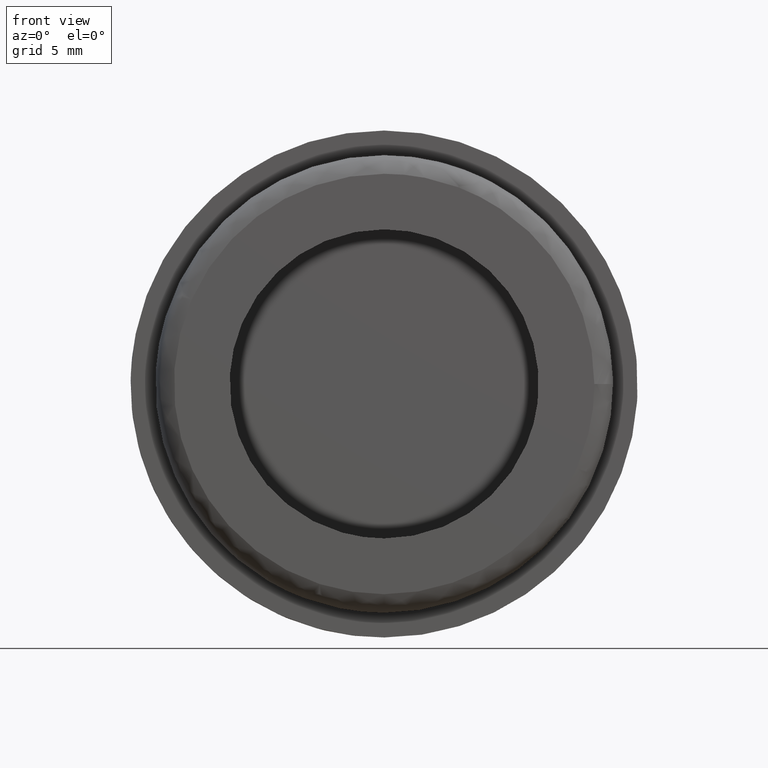
[diagram: clean part render]
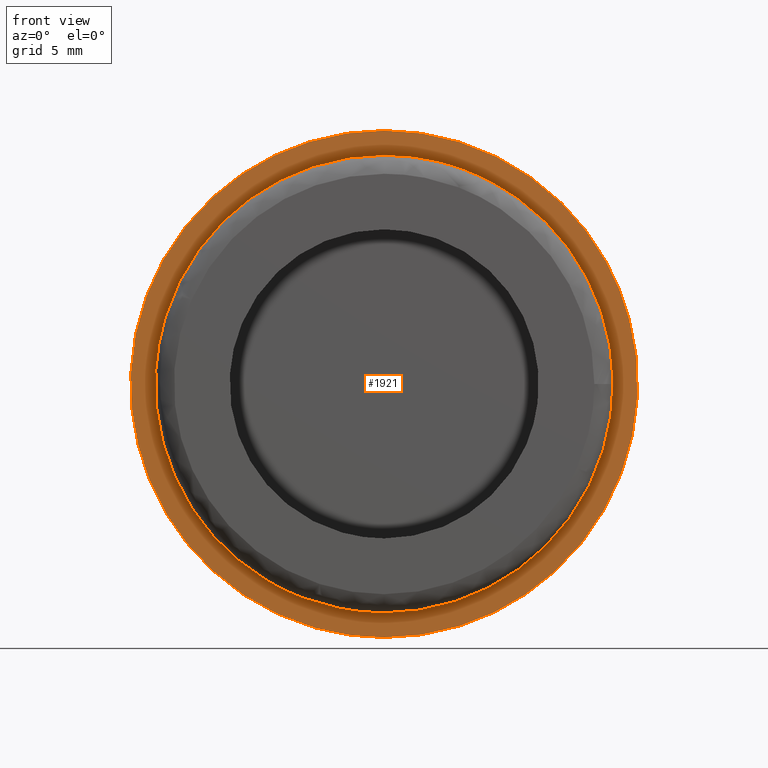
[diagram: same view with one face highlighted and labeled with its STEP entity id]
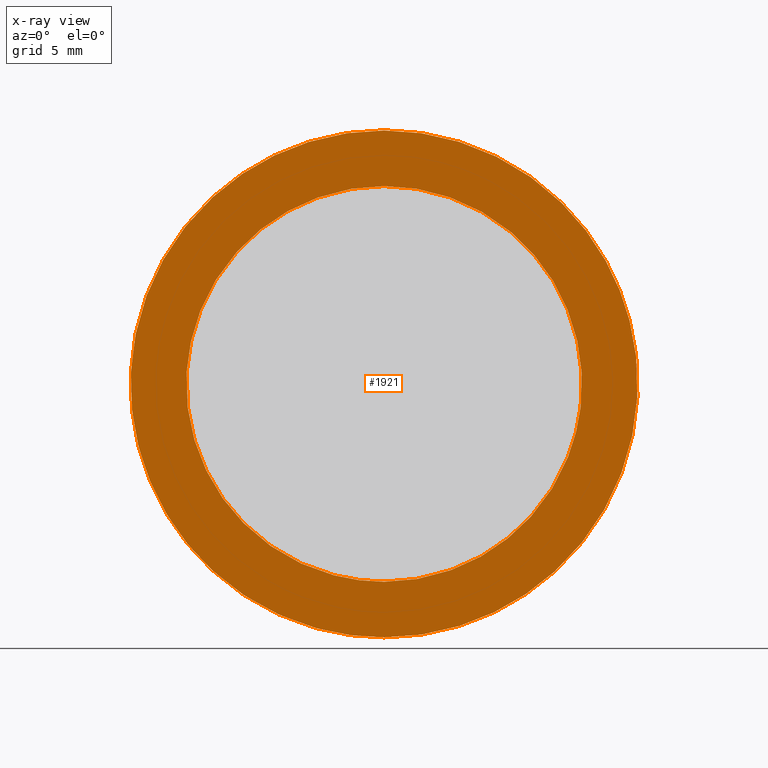
[diagram: x-ray of the same camera — body ghosted, the highlighted face saturated]
A machine part, front view. The second image highlights one B-rep face of the part: STEP entity #1921.
The next image is the same camera in x-ray: the body ghosted, the highlighted face saturated — about 0% of this face is hidden behind the body in this view.
In plain terms, the highlighted face is a freeform B-spline surface patch.
Its self-contained STEP definition (entity closure, byte-faithful):
#66=CARTESIAN_POINT('',(15.888154395634610,5.299999999999800,-1.888531148855327));
#67=VERTEX_POINT('',#66);
#68=CARTESIAN_POINT('',(0.0,5.299999999999890,16.0));
#69=VERTEX_POINT('',#68);
#70=CARTESIAN_POINT('',(15.888154395634611,5.299999999999800,-1.888531148855327));
#71=CARTESIAN_POINT('',(16.000000000000004,5.299999999999889,-0.947577523829039));
#72=CARTESIAN_POINT('',(16.0,5.299999999999890,-3.061516E-016));
#73=CARTESIAN_POINT('',(15.999999999999998,5.299999999999890,15.999999999999998));
#74=CARTESIAN_POINT('',(0.0,5.299999999999890,16.0));
#82=(BOUNDED_CURVE()B_SPLINE_CURVE(2,(#70,#71,#72,#73,#74),.UNSPECIFIED.,.F.,.U.)B_SPLINE_CURVE_WITH_KNOTS((3,2,3),(0.229562650151000,0.250000000000000,0.500000000000000),.UNSPECIFIED.)CURVE()GEOMETRIC_REPRESENTATION_ITEM()RATIONAL_B_SPLINE_CURVE((0.956027100400704,0.976056155274839,1.0,0.707106781186548,1.0))REPRESENTATION_ITEM(''));
#83=EDGE_CURVE('',#67,#69,#82,.T.);
#85=CARTESIAN_POINT('',(-15.970157209677920,5.299999999999744,0.976769521495030));
#86=VERTEX_POINT('',#85);
#87=CARTESIAN_POINT('',(0.0,5.299999999999890,16.0));
#88=CARTESIAN_POINT('',(-15.051303784936373,5.299999999999891,16.000000000000007));
#89=CARTESIAN_POINT('',(-15.970157209677922,5.299999999999744,0.976769521495030));
#97=(BOUNDED_CURVE()B_SPLINE_CURVE(2,(#87,#88,#89),.UNSPECIFIED.,.F.,.U.)B_SPLINE_CURVE_WITH_KNOTS((3,3),(0.500000000000000,0.739333039072216),.UNSPECIFIED.)CURVE()GEOMETRIC_REPRESENTATION_ITEM()RATIONAL_B_SPLINE_CURVE((1.0,0.719603903270931,0.976072206335104))REPRESENTATION_ITEM(''));
#98=EDGE_CURVE('',#69,#86,#97,.T.);
#165=CARTESIAN_POINT('',(0.0,5.299999999999890,-16.0));
#166=VERTEX_POINT('',#165);
#167=CARTESIAN_POINT('',(0.0,5.299999999999890,-16.0));
#168=CARTESIAN_POINT('',(14.210807372328322,5.299999999999891,-16.000000000000007));
#169=CARTESIAN_POINT('',(15.888154395634611,5.299999999999800,-1.888531148855327));
#177=(BOUNDED_CURVE()B_SPLINE_CURVE(2,(#167,#168,#169),.UNSPECIFIED.,.F.,.U.)B_SPLINE_CURVE_WITH_KNOTS((3,3),(0.0,0.229562650151000),.UNSPECIFIED.)CURVE()GEOMETRIC_REPRESENTATION_ITEM()RATIONAL_B_SPLINE_CURVE((1.0,0.731050625911708,0.956027100400704))REPRESENTATION_ITEM(''));
#178=EDGE_CURVE('',#166,#67,#177,.T.);
#212=CARTESIAN_POINT('',(-15.970157209677922,5.299999999999744,0.976769521495030));
#213=CARTESIAN_POINT('',(-16.000000000000004,5.299999999999890,0.488840647276838));
#214=CARTESIAN_POINT('',(-16.0,5.299999999999890,-3.061516E-016));
#215=CARTESIAN_POINT('',(-15.999999999999998,5.299999999999890,-15.999999999999998));
#216=CARTESIAN_POINT('',(0.0,5.299999999999890,-16.0));
#224=(BOUNDED_CURVE()B_SPLINE_CURVE(2,(#212,#213,#214,#215,#216),.UNSPECIFIED.,.F.,.U.)B_SPLINE_CURVE_WITH_KNOTS((3,2,3),(0.739333039072216,0.750000000000000,1.0),.UNSPECIFIED.)CURVE()GEOMETRIC_REPRESENTATION_ITEM()RATIONAL_B_SPLINE_CURVE((0.976072206335104,0.987502877915617,1.0,0.707106781186548,1.0))REPRESENTATION_ITEM(''));
#225=EDGE_CURVE('',#86,#166,#224,.T.);
#280=CARTESIAN_POINT('',(-13.849598450727401,5.299999999999891,15.114186142614759));
#281=VERTEX_POINT('',#280);
#287=CARTESIAN_POINT('',(0.0,5.299999999999890,20.500000000000000));
#288=VERTEX_POINT('',#287);
#289=CARTESIAN_POINT('',(0.0,5.299999999999890,20.500000000000000));
#290=CARTESIAN_POINT('',(-7.972013374192666,5.299999999999890,20.499999999999993));
#291=CARTESIAN_POINT('',(-13.849598450727425,5.299999999999890,15.114186142614775));
#299=(BOUNDED_CURVE()B_SPLINE_CURVE(2,(#289,#290,#291),.UNSPECIFIED.,.F.,.U.)B_SPLINE_CURVE_WITH_KNOTS((3,3),(0.500000000000000,0.618415201039816),.UNSPECIFIED.)CURVE()GEOMETRIC_REPRESENTATION_ITEM()RATIONAL_B_SPLINE_CURVE((1.0,0.861267962444025,0.853959781830883))REPRESENTATION_ITEM(''));
#300=EDGE_CURVE('',#288,#281,#299,.T.);
#302=CARTESIAN_POINT('',(17.936403453627150,5.299999999999891,9.926501455633794));
#303=VERTEX_POINT('',#302);
#304=CARTESIAN_POINT('',(17.936403453627143,5.299999999999891,9.926501455633794));
#305=CARTESIAN_POINT('',(12.084737094585593,5.299999999999890,20.500000000000004));
#306=CARTESIAN_POINT('',(0.0,5.299999999999890,20.500000000000000));
#314=(BOUNDED_CURVE()B_SPLINE_CURVE(2,(#304,#305,#306),.UNSPECIFIED.,.F.,.U.)B_SPLINE_CURVE_WITH_KNOTS((3,3),(0.332484262755645,0.500000000000000),.UNSPECIFIED.)CURVE()GEOMETRIC_REPRESENTATION_ITEM()RATIONAL_B_SPLINE_CURVE((0.870495158345373,0.803743106066369,1.0))REPRESENTATION_ITEM(''));
#315=EDGE_CURVE('',#303,#288,#314,.T.);
#365=CARTESIAN_POINT('',(0.0,5.299999999999890,-20.500000000000000));
#366=VERTEX_POINT('',#365);
#367=CARTESIAN_POINT('',(0.0,5.299999999999890,-20.500000000000000));
#368=CARTESIAN_POINT('',(20.500000000000007,5.299999999999890,-20.500000000000007));
#369=CARTESIAN_POINT('',(20.500000000000000,5.299999999999890,-3.061516E-016));
#370=CARTESIAN_POINT('',(20.500000000000004,5.299999999999891,5.294285145227113));
#371=CARTESIAN_POINT('',(17.936403453627143,5.299999999999891,9.926501455633794));
#379=(BOUNDED_CURVE()B_SPLINE_CURVE(2,(#367,#368,#369,#370,#371),.UNSPECIFIED.,.F.,.U.)B_SPLINE_CURVE_WITH_KNOTS((3,2,3),(0.0,0.250000000000000,0.332484262755645),.UNSPECIFIED.)CURVE()GEOMETRIC_REPRESENTATION_ITEM()RATIONAL_B_SPLINE_CURVE((1.0,0.707106781186548,1.0,0.903363675120178,0.870495158345373))REPRESENTATION_ITEM(''));
#380=EDGE_CURVE('',#366,#303,#379,.T.);
#382=CARTESIAN_POINT('',(-13.849598450727425,5.299999999999890,15.114186142614775));
#383=CARTESIAN_POINT('',(-20.500000000000000,5.299999999999890,9.020216535225362));
#384=CARTESIAN_POINT('',(-20.500000000000000,5.299999999999890,-3.061516E-016));
#385=CARTESIAN_POINT('',(-20.500000000000007,5.299999999999890,-20.500000000000007));
#386=CARTESIAN_POINT('',(0.0,5.299999999999890,-20.500000000000000));
#394=(BOUNDED_CURVE()B_SPLINE_CURVE(2,(#382,#383,#384,#385,#386),.UNSPECIFIED.,.F.,.U.)B_SPLINE_CURVE_WITH_KNOTS((3,2,3),(0.618415201039816,0.750000000000000,1.0),.UNSPECIFIED.)CURVE()GEOMETRIC_REPRESENTATION_ITEM()RATIONAL_B_SPLINE_CURVE((0.853959781830883,0.845838818742523,1.0,0.707106781186548,1.0))REPRESENTATION_ITEM(''));
#395=EDGE_CURVE('',#281,#366,#394,.T.);
#1904=CARTESIAN_POINT('',(-22.538618056321450,5.299999999999890,-22.547949920534041));
#1905=CARTESIAN_POINT('',(-22.538618056321450,5.299999999999890,22.547951020239740));
#1906=CARTESIAN_POINT('',(22.542766879344288,5.299999999999890,-22.547949920534041));
#1907=CARTESIAN_POINT('',(22.542766879344288,5.299999999999890,22.547951020239740));
#1908=B_SPLINE_SURFACE_WITH_KNOTS('',1,1,((#1904,#1906),(#1905,#1907)),.UNSPECIFIED.,.F.,.F.,.U.,(2,2),(2,2),(0.0,45.095900940773781),(0.0,45.081384935665731),.UNSPECIFIED.);
#1909=ORIENTED_EDGE('',*,*,#380,.T.);
#1910=ORIENTED_EDGE('',*,*,#315,.T.);
#1911=ORIENTED_EDGE('',*,*,#300,.T.);
#1912=ORIENTED_EDGE('',*,*,#395,.T.);
#1913=EDGE_LOOP('',(#1909,#1910,#1911,#1912));
#1914=FACE_OUTER_BOUND('',#1913,.T.);
#1915=ORIENTED_EDGE('',*,*,#98,.F.);
#1916=ORIENTED_EDGE('',*,*,#83,.F.);
#1917=ORIENTED_EDGE('',*,*,#178,.F.);
#1918=ORIENTED_EDGE('',*,*,#225,.F.);
#1919=EDGE_LOOP('',(#1915,#1916,#1917,#1918));
#1920=FACE_BOUND('',#1919,.T.);
#1921=ADVANCED_FACE('',(#1914,#1920),#1908,.F.);